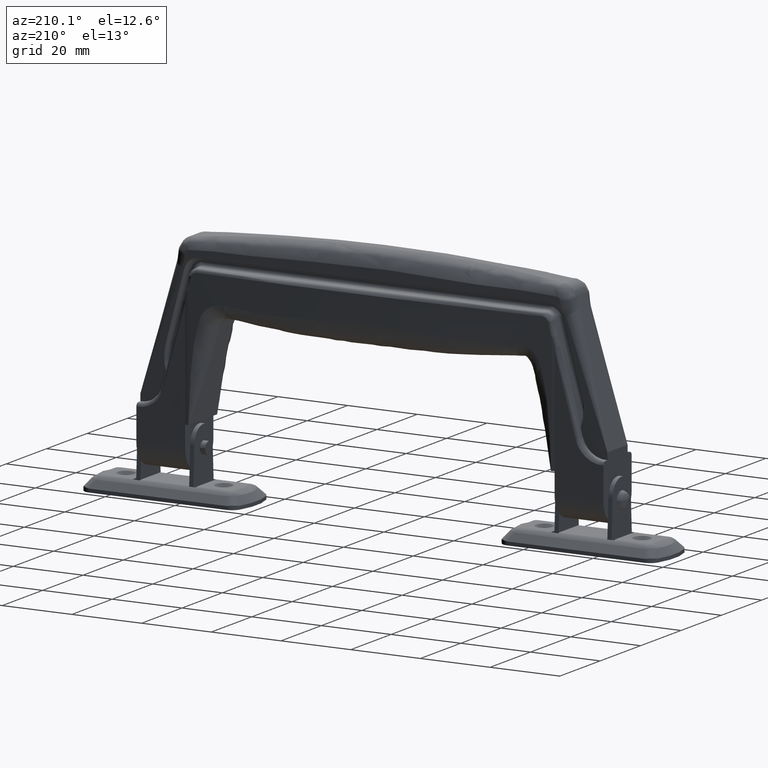
[diagram: clean part render]
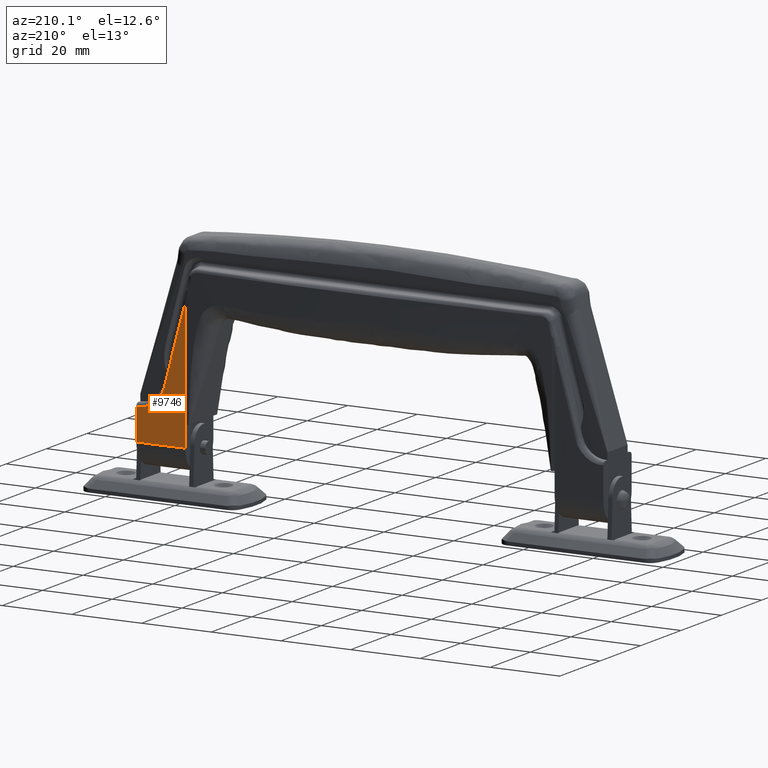
[diagram: same view with one face highlighted and labeled with its STEP entity id]
A machine part, auxiliary view. The second image highlights one B-rep face of the part: STEP entity #9746.
In plain terms, the highlighted face is a freeform B-spline surface patch.
Its self-contained STEP definition (entity closure, byte-faithful):
#8312=CARTESIAN_POINT('',(58.966428008896003,7.0,28.911864016338299));
#8313=VERTEX_POINT('',#8312);
#8344=CARTESIAN_POINT('',(67.0,7.0,22.998969468330898));
#8345=VERTEX_POINT('',#8344);
#8372=CARTESIAN_POINT('',(58.966428008895953,7.0,28.911864016338289));
#8373=CARTESIAN_POINT('',(60.625820266491125,7.0,22.752536638268410));
#8374=CARTESIAN_POINT('',(67.0,7.0,22.998969468330891));
#8382=(BOUNDED_CURVE()B_SPLINE_CURVE(2,(#8372,#8373,#8374),.UNSPECIFIED.,.F.,.U.)CURVE()GEOMETRIC_REPRESENTATION_ITEM()QUASI_UNIFORM_CURVE()RATIONAL_B_SPLINE_CURVE((1.0,0.781869419522501,1.0))REPRESENTATION_ITEM(''));
#8383=EDGE_CURVE('',#8313,#8345,#8382,.T.);
#8435=CARTESIAN_POINT('',(52.999999999829697,7.0,51.058034228548003));
#8436=VERTEX_POINT('',#8435);
#8437=CARTESIAN_POINT('',(52.999999999829697,7.0,51.058034228548003));
#8438=CARTESIAN_POINT('',(58.966428008896003,7.0,28.911864016338299));
#8439=QUASI_UNIFORM_CURVE('',1,(#8437,#8438),.UNSPECIFIED.,.F.,.U.);
#8440=EDGE_CURVE('',#8436,#8313,#8439,.T.);
#9376=CARTESIAN_POINT('',(67.0,7.0,14.0));
#9377=VERTEX_POINT('',#9376);
#9378=CARTESIAN_POINT('',(53.0,7.0,14.0));
#9379=VERTEX_POINT('',#9378);
#9380=CARTESIAN_POINT('',(67.0,7.0,14.0));
#9381=CARTESIAN_POINT('',(53.0,7.0,14.0));
#9382=QUASI_UNIFORM_CURVE('',1,(#9380,#9381),.UNSPECIFIED.,.F.,.U.);
#9383=EDGE_CURVE('',#9377,#9379,#9382,.T.);
#9702=CARTESIAN_POINT('',(52.999999999829697,7.0,20.0));
#9703=VERTEX_POINT('',#9702);
#9704=CARTESIAN_POINT('',(52.999999999829697,7.0,20.0));
#9705=CARTESIAN_POINT('',(52.999999999829697,7.0,51.058034228548003));
#9706=QUASI_UNIFORM_CURVE('',1,(#9704,#9705),.UNSPECIFIED.,.F.,.U.);
#9707=EDGE_CURVE('',#9703,#8436,#9706,.T.);
#9725=CARTESIAN_POINT('',(52.300700026955901,7.0,12.148951394507019));
#9726=CARTESIAN_POINT('',(52.300700026955887,7.0,52.909081177417747));
#9727=CARTESIAN_POINT('',(67.699300348383048,7.0,12.148951394507019));
#9728=CARTESIAN_POINT('',(67.699300348383048,7.0,52.909081177417747));
#9729=B_SPLINE_SURFACE_WITH_KNOTS('',1,1,((#9725,#9727),(#9726,#9728)),.UNSPECIFIED.,.F.,.F.,.U.,(2,2),(2,2),(0.0,40.760129782910738),(0.0,15.398600321427150),.UNSPECIFIED.);
#9730=ORIENTED_EDGE('',*,*,#8440,.T.);
#9731=ORIENTED_EDGE('',*,*,#8383,.T.);
#9732=CARTESIAN_POINT('',(67.0,7.0,14.0));
#9733=CARTESIAN_POINT('',(67.0,7.0,22.998969468330898));
#9734=QUASI_UNIFORM_CURVE('',1,(#9732,#9733),.UNSPECIFIED.,.F.,.U.);
#9735=EDGE_CURVE('',#9377,#8345,#9734,.T.);
#9736=ORIENTED_EDGE('',*,*,#9735,.F.);
#9737=ORIENTED_EDGE('',*,*,#9383,.T.);
#9738=CARTESIAN_POINT('',(52.999999999829697,7.0,20.0));
#9739=CARTESIAN_POINT('',(53.0,7.0,14.0));
#9740=QUASI_UNIFORM_CURVE('',1,(#9738,#9739),.UNSPECIFIED.,.F.,.U.);
#9741=EDGE_CURVE('',#9703,#9379,#9740,.T.);
#9742=ORIENTED_EDGE('',*,*,#9741,.F.);
#9743=ORIENTED_EDGE('',*,*,#9707,.T.);
#9744=EDGE_LOOP('',(#9730,#9731,#9736,#9737,#9742,#9743));
#9745=FACE_OUTER_BOUND('',#9744,.T.);
#9746=ADVANCED_FACE('',(#9745),#9729,.T.);